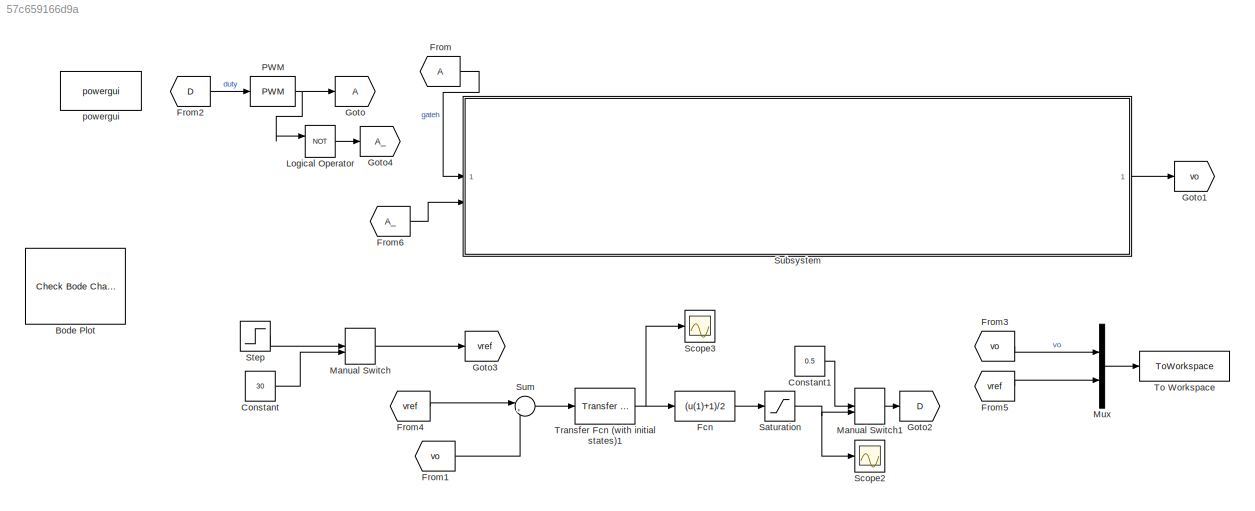
MODEL slx_57c659166d9a
KIND model
CONFIG AbsTol = auto
CONFIG EnableMultiTasking = off
CONFIG FixedStep = auto
CONFIG MaxStep = auto
CONFIG MinStep = auto
CONFIG RelTol = 1e-3
CONFIG SampleTimeConstraint = Unconstrained
CONFIG SolverName = VariableStepAuto
CONFIG StartTime = 0.0
CONFIG StopTime = Tend
BLOCK [Reference] Bode Plot  REF=slctrl_linear/Check Bode 
Characteristics
  InstantiateOnLoad = on
  LibrarySourceBlock = slctrlblks/Linear Analysis Plots/Bode Plot
  SourceBlock = slctrl_linear/Check Bode \nCharacteristics
  SourceType = Checks_Bode
BLOCK [Constant] Constant
  Value = 30
BLOCK [Constant] Constant1
  Value = 0.5
BLOCK [Fcn] Fcn
  Expr = (u(1)+1)/2
BLOCK [From] From
BLOCK [From] From1
  GotoTag = vo
BLOCK [From] From2
  GotoTag = D
BLOCK [From] From3
  GotoTag = vo
BLOCK [From] From4
  GotoTag = vref
BLOCK [From] From5
  GotoTag = vref
BLOCK [From] From6
  GotoTag = A_
BLOCK [Goto] Goto
BLOCK [Goto] Goto1
  GotoTag = vo
BLOCK [Goto] Goto2
  GotoTag = D
BLOCK [Goto] Goto3
  GotoTag = vref
BLOCK [Goto] Goto4
  GotoTag = A_
BLOCK [Logic] Logical Operator
  AllPortsSameDT = off
  Operator = NOT
  OutDataTypeStr = boolean
BLOCK [ManualSwitch] Manual Switch
  CurrentSetting = 0
BLOCK [ManualSwitch] Manual Switch1
  CurrentSetting = 0
BLOCK [Mux] Mux
  DisplayOption = bar
  Inputs = 2
BLOCK [Reference] PWM  REF=simulink/Discontinuities/PWM
  DisableCoverage = on
  SourceBlock = simulink/Discontinuities/PWM
  SourceType = PWM
BLOCK [Saturate] Saturation
  LowerLimit = 0
  UpperLimit = 1
BLOCK [Scope] Scope2
  Floating = off
  NumInputPorts = 1
  ScopeSpecificationString = Simulink.scopes.TimeScopeBlockCfg('CurrentConfiguration', extmgr.ConfigurationSet(extmgr.Configuration('Core','General UI',true),extmgr.Configuration('Core','Source UI',true),extmgr.Configuration('Sources','WiredSimulink',true,'DataLoggingVariableName','ScopeData2'),extmgr.Configuration('Visuals','Time Domain',true,'SerializedDisplays',{struct('MinYLimReal','-0.125','MaxYLimReal','1.125','YLabelRe...<+1430ch>
BLOCK [Scope] Scope3
  Floating = off
  NumInputPorts = 1
  ScopeSpecificationString = Simulink.scopes.TimeScopeBlockCfg('CurrentConfiguration', extmgr.ConfigurationSet(extmgr.Configuration('Core','General UI',true),extmgr.Configuration('Core','Source UI',true),extmgr.Configuration('Sources','WiredSimulink',true,'DataLoggingVariableName','ScopeData3'),extmgr.Configuration('Visuals','Time Domain',true,'SerializedDisplays',{struct('MinYLimReal','-1.39546','MaxYLimReal','0.62715','YLab...<+1467ch>
BLOCK [Step] Step
  After = Vref2
  Before = Vref1
  SampleTime = Tsamp
  Time = Ttrig
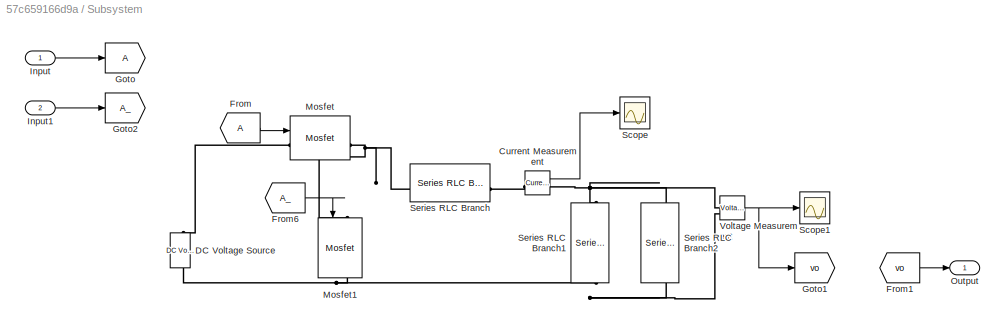
BLOCK [SubSystem] Subsystem
BLOCK [Reference] Subsystem/Current Measurement  REF=spsCurrentMeasurementLib/Current Measurement
  LibrarySourceBlock = sps_lib/Sensors and Measurements/Current Measurement
  SourceBlock = spsCurrentMeasurementLib/Current Measurement
  SourceType = Current Measurement
  UserDataPersistent = on
BLOCK [Reference] Subsystem/DC Voltage Source  REF=spsDCVoltageSourceLib/DC Voltage Source
  LibrarySourceBlock = sps_lib/Sources/DC Voltage Source
  SourceBlock = spsDCVoltageSourceLib/DC Voltage Source
  SourceType = DC Voltage Source
BLOCK [From] Subsystem/From
BLOCK [From] Subsystem/From1
  GotoTag = vo
BLOCK [From] Subsystem/From6
  GotoTag = A_
BLOCK [Goto] Subsystem/Goto
BLOCK [Goto] Subsystem/Goto1
  GotoTag = vo
BLOCK [Goto] Subsystem/Goto2
  GotoTag = A_
BLOCK [Inport] Subsystem/Input
BLOCK [Inport] Subsystem/Input1
  Port = 2
BLOCK [Reference] Subsystem/Mosfet  REF=spsMosfetLib/Mosfet
  LibrarySourceBlock = sps_lib/Power Electronics/Mosfet
  SourceBlock = spsMosfetLib/Mosfet
  SourceType = Mosfet
BLOCK [Reference] Subsystem/Mosfet1  REF=spsMosfetLib/Mosfet
  LibrarySourceBlock = sps_lib/Power Electronics/Mosfet
  NameLocation = left
  SourceBlock = spsMosfetLib/Mosfet
  SourceType = Mosfet
BLOCK [Outport] Subsystem/Output
BLOCK [Scope] Subsystem/Scope
  Floating = off
  NumInputPorts = 1
  ScopeSpecificationString = Simulink.scopes.TimeScopeBlockCfg('CurrentConfiguration', extmgr.ConfigurationSet(extmgr.Configuration('Core','General UI',true),extmgr.Configuration('Core','Source UI',true),extmgr.Configuration('Sources','WiredSimulink',true,'DataLoggingVariableName','ScopeData1'),extmgr.Configuration('Visuals','Time Domain',true,'SerializedDisplays',{struct('MinYLimReal','-11.41199','MaxYLimReal','102.71794','Y...<+1432ch>
BLOCK [Scope] Subsystem/Scope1
  Floating = off
  NumInputPorts = 1
  ScopeSpecificationString = Simulink.scopes.TimeScopeBlockCfg('CurrentConfiguration', extmgr.ConfigurationSet(extmgr.Configuration('Core','General UI',true),extmgr.Configuration('Core','Source UI',true),extmgr.Configuration('Sources','WiredSimulink',true,'DataLoggingVariableName','ScopeData2'),extmgr.Configuration('Visuals','Time Domain',true,'SerializedDisplays',{struct('MinYLimReal','-9.52369','MaxYLimReal','85.81317','YLa...<+1457ch>
BLOCK [Reference] Subsystem/Series RLC Branch  REF=spsSeriesRLCBranchLib/Series RLC Branch
  LibrarySourceBlock = sps_lib/Passives/Series RLC Branch
  SourceBlock = spsSeriesRLCBranchLib/Series RLC Branch
  SourceType = Series RLC Branch
BLOCK [Reference] Subsystem/Series RLC Branch1  REF=spsSeriesRLCBranchLib/Series RLC Branch
  LibrarySourceBlock = sps_lib/Passives/Series RLC Branch
  NameLocation = left
  SourceBlock = spsSeriesRLCBranchLib/Series RLC Branch
  SourceType = Series RLC Branch
BLOCK [Reference] Subsystem/Series RLC Branch2  REF=spsSeriesRLCBranchLib/Series RLC Branch
  LibrarySourceBlock = sps_lib/Passives/Series RLC Branch
  NameLocation = left
  SourceBlock = spsSeriesRLCBranchLib/Series RLC Branch
  SourceType = Series RLC Branch
BLOCK [Reference] Subsystem/Voltage Measurement  REF=spsVoltageMeasurementLib/Voltage Measurement
  LibrarySourceBlock = sps_lib/Sensors and Measurements/Voltage Measurement
  SourceBlock = spsVoltageMeasurementLib/Voltage Measurement
  SourceType = Voltage Measurement
  UserDataPersistent = on
BLOCK [Sum] Sum
  Inputs = |+-
BLOCK [ToWorkspace] To Workspace
  FixptAsFi = on
  MaxDataPoints = inf
  SampleTime = Tsamp
  SaveFormat = Timeseries
  VariableName = sim_out
BLOCK [Reference] Transfer Fcn (with initial states)1  REF=simulink_extras/Additional
Linear/Transfer Fcn
(with initial states)
  SourceBlock = simulink_extras/Additional\nLinear/Transfer Fcn\n(with initial states)
  SourceType = Transfer Function with Initial States
BLOCK [Reference] powergui  REF=sps_lib/powergui
  LibrarySourceBlock = sps_lib/powergui
  Priority = 1
  SourceBlock = sps_lib/powergui
  SourceType = PSB option menu block
LINE Constant1:1 -> Manual Switch1:1
LINE Constant:1 -> Manual Switch:2
LINE Fcn:1 -> Saturation:1
LINE From1:1 -> Sum:2
LINE From2:1 -> PWM:1
LINE From3:1 -> Mux:1
LINE From4:1 -> Sum:1
LINE From5:1 -> Mux:2
LINE From6:1 -> Subsystem:2
LINE From:1 -> Subsystem:1
LINE Logical Operator:1 -> Goto4:1
LINE Manual Switch1:1 -> Goto2:1
LINE Manual Switch:1 -> Goto3:1
LINE Mux:1 -> To Workspace:1
NET PWM:1 -> Goto:1, Logical Operator:1
NET Saturation:1 -> Manual Switch1:2, Scope2:1
LINE Step:1 -> Manual Switch:1
LINE Subsystem/Current Measurement:1 -> Subsystem/Scope:1
LINE Subsystem/From1:1 -> Subsystem/Output:1
LINE Subsystem/From6:1 -> Subsystem/Mosfet1:1
LINE Subsystem/From:1 -> Subsystem/Mosfet:1
LINE Subsystem/Input1:1 -> Subsystem/Goto2:1
LINE Subsystem/Input:1 -> Subsystem/Goto:1
NET Subsystem/Voltage Measurement:1 -> Subsystem/Goto1:1, Subsystem/Scope1:1
LINE Subsystem:1 -> Goto1:1
LINE Sum:1 -> Transfer Fcn (with initial states)1:1
NET Transfer Fcn (with initial states)1:1 -> Fcn:1, Scope3:1
PLINE Subsystem/Current Measurement:LConn1 -- Subsystem/Series RLC Branch:RConn1
PNET net1: Subsystem/Current Measurement:RConn1 -- Subsystem/Series RLC Branch1:LConn1 -- Subsystem/Series RLC Branch2:LConn1 -- Subsystem/Voltage Measurement:LConn1
PNET net2: Subsystem/DC Voltage Source:LConn1 -- Subsystem/Mosfet1:RConn1 -- Subsystem/Series RLC Branch1:RConn1 -- Subsystem/Series RLC Branch2:RConn1 -- Subsystem/Voltage Measurement:LConn2
PLINE Subsystem/DC Voltage Source:RConn1 -- Subsystem/Mosfet:LConn1
PNET net3: Subsystem/Mosfet1:LConn1 -- Subsystem/Mosfet:RConn1 -- Subsystem/Series RLC Branch:LConn1
note: NET lines group one-source signal fan-out (src -> all destinations, sorted); 1:1 wires keep LINE; PNET lines group multi-terminal physical nets as a canonical sorted terminal list (undirected conserving connections); 2-terminal nets keep the pairwise PLINE form
